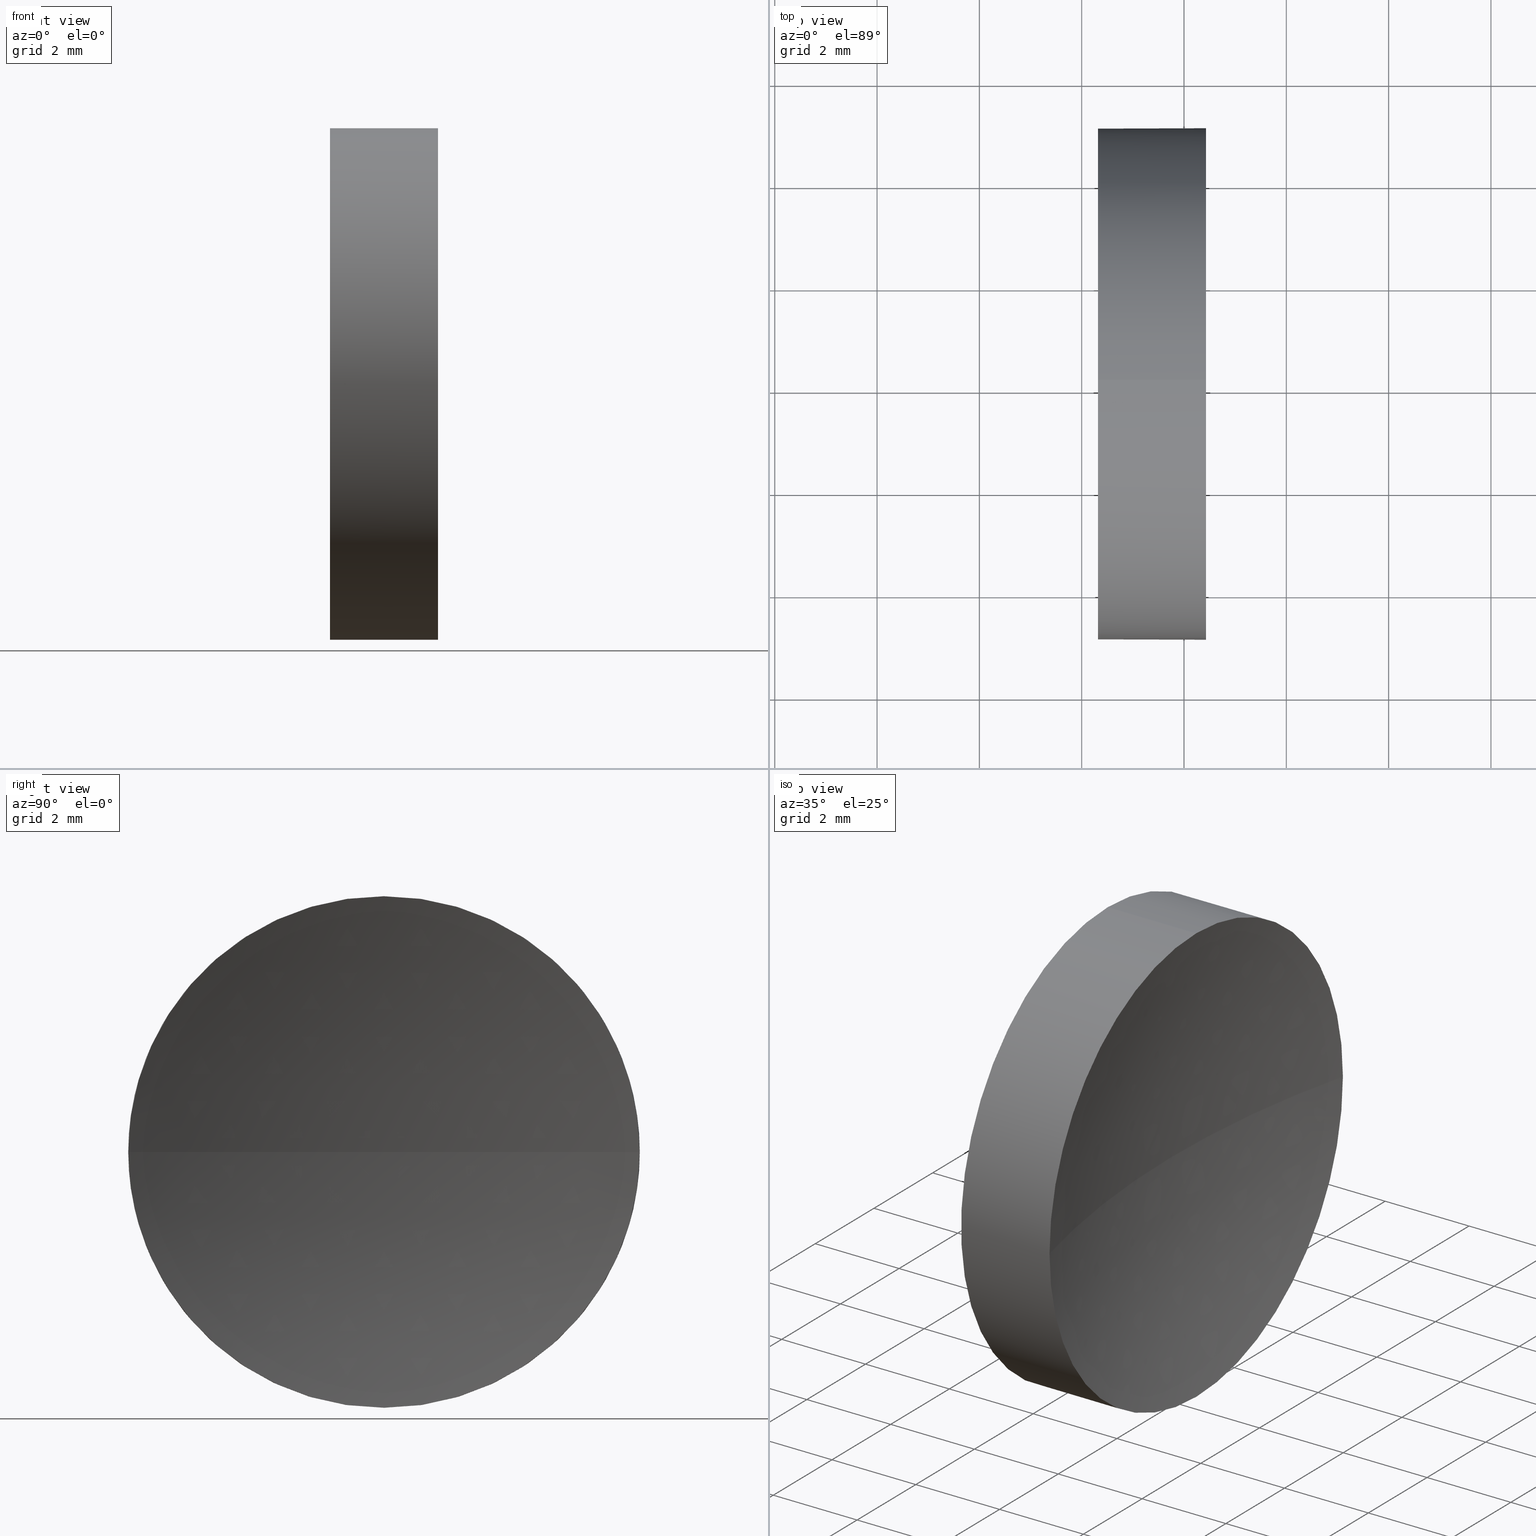
[diagram: canonical four-view strip — front | top / right | iso, engineering-drawing reading convention]
A machine part, canonical four-view strip (front | top / right | iso — engineering-drawing reading convention). The complete STEP part file that produces these views, byte-faithful:
ISO-10303-21;
HEADER;
FILE_DESCRIPTION (( 'STEP AP214' ),
    '1' );
FILE_NAME ('120015.STEP',
    '2019-06-14T05:39:30',
    ( '' ),
    ( '' ),
    'SwSTEP 2.0',
    'SolidWorks 2016',
    '' );
FILE_SCHEMA (( 'AUTOMOTIVE_DESIGN' ));
ENDSEC;

DATA;
#1 = MECHANICAL_DESIGN_GEOMETRIC_PRESENTATION_REPRESENTATION (  '', ( #78 ), #6 ) ;
#2 = PRODUCT_DEFINITION_CONTEXT ( 'detailed design', #72, 'design' ) ;
#3 = AXIS2_PLACEMENT_3D ( 'NONE', #104, #116, #4 ) ;
#4 = DIRECTION ( 'NONE',  ( 0.0000000000000000000, 0.0000000000000000000, 1.000000000000000000 ) ) ;
#5 = DIRECTION ( 'NONE',  ( -1.000000000000000000, -0.0000000000000000000, -0.0000000000000000000 ) ) ;
#6 =( GEOMETRIC_REPRESENTATION_CONTEXT ( 3 ) GLOBAL_UNCERTAINTY_ASSIGNED_CONTEXT ( ( #48 ) ) GLOBAL_UNIT_ASSIGNED_CONTEXT ( ( #175, #43, #10 ) ) REPRESENTATION_CONTEXT ( 'NONE', 'WORKASPACE' ) );
#7 = CARTESIAN_POINT ( 'NONE',  ( 44.31958549791029600, 26.08904114919495900, 0.0000000000000000000 ) ) ;
#8 = EDGE_CURVE ( 'NONE', #183, #85, #186, .T. ) ;
#9 = DIRECTION ( 'NONE',  ( 0.0000000000000000000, 1.000000000000000000, 0.0000000000000000000 ) ) ;
#10 =( NAMED_UNIT ( * ) SI_UNIT ( $, .STERADIAN. ) SOLID_ANGLE_UNIT ( ) );
#11 = SURFACE_STYLE_USAGE ( .BOTH. , #162 ) ;
#12 = ADVANCED_FACE ( 'NONE', ( #173 ), #156, .T. ) ;
#13 = DIRECTION ( 'NONE',  ( 0.0000000000000000000, 0.0000000000000000000, -1.000000000000000000 ) ) ;
#14 = AXIS2_PLACEMENT_3D ( 'NONE', #93, #92, #71 ) ;
#15 = COLOUR_RGB ( '',1.000000000000000000, 1.000000000000000000, 1.000000000000000000 ) ;
#16 = VERTEX_POINT ( 'NONE', #150 ) ;
#17 = SURFACE_STYLE_FILL_AREA ( #83 ) ;
#18 = AXIS2_PLACEMENT_3D ( 'NONE', #115, #35, #145 ) ;
#19 = CIRCLE ( 'NONE', #144, 20.79680093179732500 ) ;
#20 = SURFACE_STYLE_FILL_AREA ( #91 ) ;
#21 = DIRECTION ( 'NONE',  ( 0.0000000000000000000, 0.0000000000000000000, 1.000000000000000000 ) ) ;
#22 = VECTOR ( 'NONE', #124, 1000.000000000000000 ) ;
#23 = ORIENTED_EDGE ( 'NONE', *, *, #63, .T. ) ;
#24 = DIRECTION ( 'NONE',  ( -1.000000000000000000, -0.0000000000000000000, -0.0000000000000000000 ) ) ;
#25 = CARTESIAN_POINT ( 'NONE',  ( 46.42958549791029600, 26.08904114919495900, 0.0000000000000000000 ) ) ;
#26 = EDGE_LOOP ( 'NONE', ( #168, #87, #77, #62, #23 ) ) ;
#27 = CARTESIAN_POINT ( 'NONE',  ( 0.0000000000000000000, 0.0000000000000000000, 0.0000000000000000000 ) ) ;
#28 = AXIS2_PLACEMENT_3D ( 'NONE', #7, #148, #66 ) ;
#29 = CARTESIAN_POINT ( 'NONE',  ( 44.31958549791029600, 26.08904114919495900, 5.000000000000000900 ) ) ;
#30 = EDGE_LOOP ( 'NONE', ( #171, #143 ) ) ;
#31 = MANIFOLD_SOLID_BREP ( '��ת1', #99 ) ;
#32 = LINE ( 'NONE', #109, #22 ) ;
#33 = PRODUCT_DEFINITION_SHAPE ( 'NONE', 'NONE',  #130 ) ;
#34 = AXIS2_PLACEMENT_3D ( 'NONE', #107, #24, #135 ) ;
#35 = DIRECTION ( 'NONE',  ( -1.000000000000000000, -0.0000000000000000000, -0.0000000000000000000 ) ) ;
#36 = SURFACE_SIDE_STYLE ('',( #20 ) ) ;
#37 = ORIENTED_EDGE ( 'NONE', *, *, #169, .F. ) ;
#38 = PRODUCT_DEFINITION_FORMATION_WITH_SPECIFIED_SOURCE ( '�κ�', '', #140, .NOT_KNOWN. ) ;
#39 = DIRECTION ( 'NONE',  ( 0.0000000000000000000, 0.0000000000000000000, 1.000000000000000000 ) ) ;
#40 = FILL_AREA_STYLE_COLOUR ( '', #51 ) ;
#41 = VERTEX_POINT ( 'NONE', #81 ) ;
#42 = EDGE_CURVE ( 'NONE', #41, #183, #122, .T. ) ;
#43 =( NAMED_UNIT ( * ) PLANE_ANGLE_UNIT ( ) SI_UNIT ( $, .RADIAN. ) );
#44 = VECTOR ( 'NONE', #53, 1000.000000000000000 ) ;
#45 = ORIENTED_EDGE ( 'NONE', *, *, #63, .F. ) ;
#46 = CARTESIAN_POINT ( 'NONE',  ( 46.42958549791029600, 26.08904114919495900, 0.0000000000000000000 ) ) ;
#47 = AXIS2_PLACEMENT_3D ( 'NONE', #60, #13, #9 ) ;
#48 = UNCERTAINTY_MEASURE_WITH_UNIT (LENGTH_MEASURE( 1.000000000000000100E-005 ), #175, 'distance_accuracy_value', 'NONE');
#49 = PRODUCT_RELATED_PRODUCT_CATEGORY ( 'part', '', ( #140 ) ) ;
#50 = SPHERICAL_SURFACE ( 'NONE', #172, 20.79680093179732500 ) ;
#51 = COLOUR_RGB ( '',1.000000000000000000, 1.000000000000000000, 1.000000000000000000 ) ;
#52 = PRESENTATION_STYLE_ASSIGNMENT (( #11 ) ) ;
#53 = DIRECTION ( 'NONE',  ( -1.000000000000000000, -0.0000000000000000000, -0.0000000000000000000 ) ) ;
#54 = DIRECTION ( 'NONE',  ( 0.0000000000000000000, 0.0000000000000000000, -1.000000000000000000 ) ) ;
#55 =( LENGTH_UNIT ( ) NAMED_UNIT ( * ) SI_UNIT ( .MILLI., .METRE. ) );
#56 = AXIS2_PLACEMENT_3D ( 'NONE', #177, #181, #57 ) ;
#57 = DIRECTION ( 'NONE',  ( 0.0000000000000000000, 0.0000000000000000000, 1.000000000000000000 ) ) ;
#58 = DIRECTION ( 'NONE',  ( 1.000000000000000000, 0.0000000000000000000, 0.0000000000000000000 ) ) ;
#59 = EDGE_CURVE ( 'NONE', #85, #183, #170, .T. ) ;
#60 = CARTESIAN_POINT ( 'NONE',  ( 66.61638635878981100, 26.08904114919495500, 0.0000000000000000000 ) ) ;
#61 = ADVANCED_FACE ( 'NONE', ( #113 ), #147, .F. ) ;
#62 = ORIENTED_EDGE ( 'NONE', *, *, #155, .F. ) ;
#63 = EDGE_CURVE ( 'NONE', #141, #16, #117, .T. ) ;
#64 = ORIENTED_EDGE ( 'NONE', *, *, #89, .F. ) ;
#65 = AXIS2_PLACEMENT_3D ( 'NONE', #174, #88, #21 ) ;
#66 = DIRECTION ( 'NONE',  ( 0.0000000000000000000, 0.0000000000000000000, -1.000000000000000000 ) ) ;
#67 = AXIS2_PLACEMENT_3D ( 'NONE', #27, #138, #58 ) ;
#68 = DIRECTION ( 'NONE',  ( 0.0000000000000000000, 1.000000000000000000, 0.0000000000000000000 ) ) ;
#69 =( NAMED_UNIT ( * ) SI_UNIT ( $, .STERADIAN. ) SOLID_ANGLE_UNIT ( ) );
#70 = VERTEX_POINT ( 'NONE', #80 ) ;
#71 = DIRECTION ( 'NONE',  ( 1.000000000000000000, 0.0000000000000000000, 0.0000000000000000000 ) ) ;
#72 = APPLICATION_CONTEXT ( 'automotive_design' ) ;
#73 = ADVANCED_FACE ( 'NONE', ( #127 ), #50, .F. ) ;
#74 = FILL_AREA_STYLE_COLOUR ( '', #15 ) ;
#75 =( GEOMETRIC_REPRESENTATION_CONTEXT ( 3 ) GLOBAL_UNCERTAINTY_ASSIGNED_CONTEXT ( ( #178 ) ) GLOBAL_UNIT_ASSIGNED_CONTEXT ( ( #106, #149, #118 ) ) REPRESENTATION_CONTEXT ( 'NONE', 'WORKASPACE' ) );
#76 = EDGE_LOOP ( 'NONE', ( #129, #37, #64, #176 ) ) ;
#77 = ORIENTED_EDGE ( 'NONE', *, *, #59, .F. ) ;
#78 = STYLED_ITEM ( 'NONE', ( #52 ), #158 ) ;
#79 = ORIENTED_EDGE ( 'NONE', *, *, #155, .T. ) ;
#80 = CARTESIAN_POINT ( 'NONE',  ( 46.42958549791030300, 21.08904114919495900, -6.123233995736764300E-016 ) ) ;
#81 = CARTESIAN_POINT ( 'NONE',  ( 46.42958549791029600, 26.08904114919495900, -5.000000000000000900 ) ) ;
#82 = DIRECTION ( 'NONE',  ( -1.000000000000000000, -0.0000000000000000000, -0.0000000000000000000 ) ) ;
#83 = FILL_AREA_STYLE ('',( #74 ) ) ;
#84 = DIRECTION ( 'NONE',  ( 0.0000000000000000000, 1.000000000000000000, 1.224646799147353200E-016 ) ) ;
#85 = VERTEX_POINT ( 'NONE', #29 ) ;
#86 = FACE_OUTER_BOUND ( 'NONE', #136, .T. ) ;
#87 = ORIENTED_EDGE ( 'NONE', *, *, #42, .T. ) ;
#88 = DIRECTION ( 'NONE',  ( -1.000000000000000000, -0.0000000000000000000, -0.0000000000000000000 ) ) ;
#89 = EDGE_CURVE ( 'NONE', #16, #41, #132, .T. ) ;
#90 = CARTESIAN_POINT ( 'NONE',  ( 66.61638635878981100, 26.08904114919495500, 0.0000000000000000000 ) ) ;
#91 = FILL_AREA_STYLE ('',( #40 ) ) ;
#92 = DIRECTION ( 'NONE',  ( 0.0000000000000000000, 0.0000000000000000000, 1.000000000000000000 ) ) ;
#93 = CARTESIAN_POINT ( 'NONE',  ( 66.61638635878981100, 26.08904114919495500, 0.0000000000000000000 ) ) ;
#94 = EDGE_CURVE ( 'NONE', #70, #141, #146, .T. ) ;
#95 = VERTEX_POINT ( 'NONE', #120 ) ;
#96 = CARTESIAN_POINT ( 'NONE',  ( 66.61638635878981100, 26.08904114919495500, 0.0000000000000000000 ) ) ;
#97 = DIRECTION ( 'NONE',  ( 0.0000000000000000000, 0.0000000000000000000, 1.000000000000000000 ) ) ;
#98 = CIRCLE ( 'NONE', #14, 20.79680093179732500 ) ;
#99 = CLOSED_SHELL ( 'NONE', ( #139, #108, #73, #12, #61 ) ) ;
#100 = EDGE_LOOP ( 'NONE', ( #128, #126, #105, #79, #102 ) ) ;
#101 = EDGE_CURVE ( 'NONE', #16, #95, #98, .T. ) ;
#102 = ORIENTED_EDGE ( 'NONE', *, *, #8, .F. ) ;
#103 = AXIS2_PLACEMENT_3D ( 'NONE', #159, #5, #39 ) ;
#104 = CARTESIAN_POINT ( 'NONE',  ( 42.44986111413682300, 26.08904114919495900, 0.0000000000000000000 ) ) ;
#105 = ORIENTED_EDGE ( 'NONE', *, *, #94, .T. ) ;
#106 =( LENGTH_UNIT ( ) NAMED_UNIT ( * ) SI_UNIT ( .MILLI., .METRE. ) );
#107 = CARTESIAN_POINT ( 'NONE',  ( 42.44986111413682300, 26.08904114919495900, 0.0000000000000000000 ) ) ;
#108 = ADVANCED_FACE ( 'NONE', ( #86 ), #166, .F. ) ;
#109 = CARTESIAN_POINT ( 'NONE',  ( 42.44986111413682300, 26.08904114919495900, 5.000000000000000900 ) ) ;
#110 = AXIS2_PLACEMENT_3D ( 'NONE', #46, #123, #179 ) ;
#111 = CIRCLE ( 'NONE', #56, 5.000000000000000900 ) ;
#112 =( GEOMETRIC_REPRESENTATION_CONTEXT ( 3 ) GLOBAL_UNCERTAINTY_ASSIGNED_CONTEXT ( ( #119 ) ) GLOBAL_UNIT_ASSIGNED_CONTEXT ( ( #55, #152, #69 ) ) REPRESENTATION_CONTEXT ( 'NONE', 'WORKASPACE' ) );
#113 = FACE_OUTER_BOUND ( 'NONE', #30, .T. ) ;
#114 = PRESENTATION_STYLE_ASSIGNMENT (( #131 ) ) ;
#115 = CARTESIAN_POINT ( 'NONE',  ( 44.31958549791029600, 26.08904114919495900, 0.0000000000000000000 ) ) ;
#116 = DIRECTION ( 'NONE',  ( -1.000000000000000000, -0.0000000000000000000, -0.0000000000000000000 ) ) ;
#117 = CIRCLE ( 'NONE', #65, 5.000000000000000900 ) ;
#118 =( NAMED_UNIT ( * ) SI_UNIT ( $, .STERADIAN. ) SOLID_ANGLE_UNIT ( ) );
#119 = UNCERTAINTY_MEASURE_WITH_UNIT (LENGTH_MEASURE( 1.000000000000000100E-005 ), #55, 'distance_accuracy_value', 'NONE');
#120 = CARTESIAN_POINT ( 'NONE',  ( 45.81958542699248900, 26.08904114919495500, 0.0000000000000000000 ) ) ;
#121 = STYLED_ITEM ( 'NONE', ( #114 ), #31 ) ;
#122 = LINE ( 'NONE', #160, #44 ) ;
#123 = DIRECTION ( 'NONE',  ( -1.000000000000000000, -0.0000000000000000000, -0.0000000000000000000 ) ) ;
#124 = DIRECTION ( 'NONE',  ( -1.000000000000000000, -0.0000000000000000000, -0.0000000000000000000 ) ) ;
#125 = CYLINDRICAL_SURFACE ( 'NONE', #34, 5.000000000000000900 ) ;
#126 = ORIENTED_EDGE ( 'NONE', *, *, #169, .T. ) ;
#127 = FACE_OUTER_BOUND ( 'NONE', #76, .T. ) ;
#128 = ORIENTED_EDGE ( 'NONE', *, *, #42, .F. ) ;
#129 = ORIENTED_EDGE ( 'NONE', *, *, #180, .F. ) ;
#130 = PRODUCT_DEFINITION ( 'δ֪', '', #38, #2 ) ;
#131 = SURFACE_STYLE_USAGE ( .BOTH. , #36 ) ;
#132 = CIRCLE ( 'NONE', #110, 5.000000000000000900 ) ;
#133 = ORIENTED_EDGE ( 'NONE', *, *, #180, .T. ) ;
#134 = DIRECTION ( 'NONE',  ( 0.0000000000000000000, 1.224646799147353200E-016, -1.000000000000000000 ) ) ;
#135 = DIRECTION ( 'NONE',  ( 0.0000000000000000000, 0.0000000000000000000, 1.000000000000000000 ) ) ;
#136 = EDGE_LOOP ( 'NONE', ( #182, #133, #184, #45 ) ) ;
#137 = CARTESIAN_POINT ( 'NONE',  ( 46.42958549791029600, 26.08904114919495900, 5.000000000000000900 ) ) ;
#138 = DIRECTION ( 'NONE',  ( 0.0000000000000000000, 0.0000000000000000000, 1.000000000000000000 ) ) ;
#139 = ADVANCED_FACE ( 'NONE', ( #163 ), #125, .T. ) ;
#140 = PRODUCT ( '120015', '120015', '', ( #164 ) ) ;
#141 = VERTEX_POINT ( 'NONE', #137 ) ;
#142 = MECHANICAL_DESIGN_GEOMETRIC_PRESENTATION_REPRESENTATION (  '', ( #121 ), #75 ) ;
#143 = ORIENTED_EDGE ( 'NONE', *, *, #8, .T. ) ;
#144 = AXIS2_PLACEMENT_3D ( 'NONE', #96, #134, #84 ) ;
#145 = DIRECTION ( 'NONE',  ( 0.0000000000000000000, 0.0000000000000000000, 1.000000000000000000 ) ) ;
#146 = CIRCLE ( 'NONE', #185, 5.000000000000000900 ) ;
#147 = PLANE ( 'NONE',  #28 ) ;
#148 = DIRECTION ( 'NONE',  ( 1.000000000000000000, 0.0000000000000000000, 0.0000000000000000000 ) ) ;
#149 =( NAMED_UNIT ( * ) PLANE_ANGLE_UNIT ( ) SI_UNIT ( $, .RADIAN. ) );
#150 = CARTESIAN_POINT ( 'NONE',  ( 46.42958549791030300, 31.08904114919495900, 0.0000000000000000000 ) ) ;
#151 = APPLICATION_CONTEXT ( 'automotive_design' ) ;
#152 =( NAMED_UNIT ( * ) PLANE_ANGLE_UNIT ( ) SI_UNIT ( $, .RADIAN. ) );
#153 = APPLICATION_PROTOCOL_DEFINITION ( 'draft international standard', 'automotive_design', 1998, #151 ) ;
#154 = CARTESIAN_POINT ( 'NONE',  ( 44.31958549791029600, 26.08904114919495900, -5.000000000000000900 ) ) ;
#155 = EDGE_CURVE ( 'NONE', #141, #85, #32, .T. ) ;
#156 = CYLINDRICAL_SURFACE ( 'NONE', #3, 5.000000000000000900 ) ;
#157 = PRESENTATION_LAYER_ASSIGNMENT (  '', '', ( #121 ) ) ;
#158 = ADVANCED_BREP_SHAPE_REPRESENTATION ( '120015', ( #31, #67 ), #112 ) ;
#159 = CARTESIAN_POINT ( 'NONE',  ( 44.31958549791029600, 26.08904114919495900, 0.0000000000000000000 ) ) ;
#160 = CARTESIAN_POINT ( 'NONE',  ( 42.44986111413682300, 26.08904114919495900, -5.000000000000000900 ) ) ;
#161 = SHAPE_DEFINITION_REPRESENTATION ( #33, #158 ) ;
#162 = SURFACE_SIDE_STYLE ('',( #17 ) ) ;
#163 = FACE_OUTER_BOUND ( 'NONE', #26, .T. ) ;
#164 = PRODUCT_CONTEXT ( 'NONE', #151, 'mechanical' ) ;
#165 = APPLICATION_PROTOCOL_DEFINITION ( 'draft international standard', 'automotive_design', 1998, #72 ) ;
#166 = SPHERICAL_SURFACE ( 'NONE', #47, 20.79680093179732500 ) ;
#167 = PRESENTATION_LAYER_ASSIGNMENT (  '', '', ( #78 ) ) ;
#168 = ORIENTED_EDGE ( 'NONE', *, *, #89, .T. ) ;
#169 = EDGE_CURVE ( 'NONE', #41, #70, #111, .T. ) ;
#170 = CIRCLE ( 'NONE', #18, 5.000000000000000900 ) ;
#171 = ORIENTED_EDGE ( 'NONE', *, *, #59, .T. ) ;
#172 = AXIS2_PLACEMENT_3D ( 'NONE', #90, #54, #68 ) ;
#173 = FACE_OUTER_BOUND ( 'NONE', #100, .T. ) ;
#174 = CARTESIAN_POINT ( 'NONE',  ( 46.42958549791029600, 26.08904114919495900, 0.0000000000000000000 ) ) ;
#175 =( LENGTH_UNIT ( ) NAMED_UNIT ( * ) SI_UNIT ( .MILLI., .METRE. ) );
#176 = ORIENTED_EDGE ( 'NONE', *, *, #101, .T. ) ;
#177 = CARTESIAN_POINT ( 'NONE',  ( 46.42958549791029600, 26.08904114919495900, 0.0000000000000000000 ) ) ;
#178 = UNCERTAINTY_MEASURE_WITH_UNIT (LENGTH_MEASURE( 1.000000000000000100E-005 ), #106, 'distance_accuracy_value', 'NONE');
#179 = DIRECTION ( 'NONE',  ( 0.0000000000000000000, 0.0000000000000000000, 1.000000000000000000 ) ) ;
#180 = EDGE_CURVE ( 'NONE', #70, #95, #19, .T. ) ;
#181 = DIRECTION ( 'NONE',  ( -1.000000000000000000, -0.0000000000000000000, -0.0000000000000000000 ) ) ;
#182 = ORIENTED_EDGE ( 'NONE', *, *, #94, .F. ) ;
#183 = VERTEX_POINT ( 'NONE', #154 ) ;
#184 = ORIENTED_EDGE ( 'NONE', *, *, #101, .F. ) ;
#185 = AXIS2_PLACEMENT_3D ( 'NONE', #25, #82, #97 ) ;
#186 = CIRCLE ( 'NONE', #103, 5.000000000000000900 ) ;
ENDSEC;
END-ISO-10303-21;
